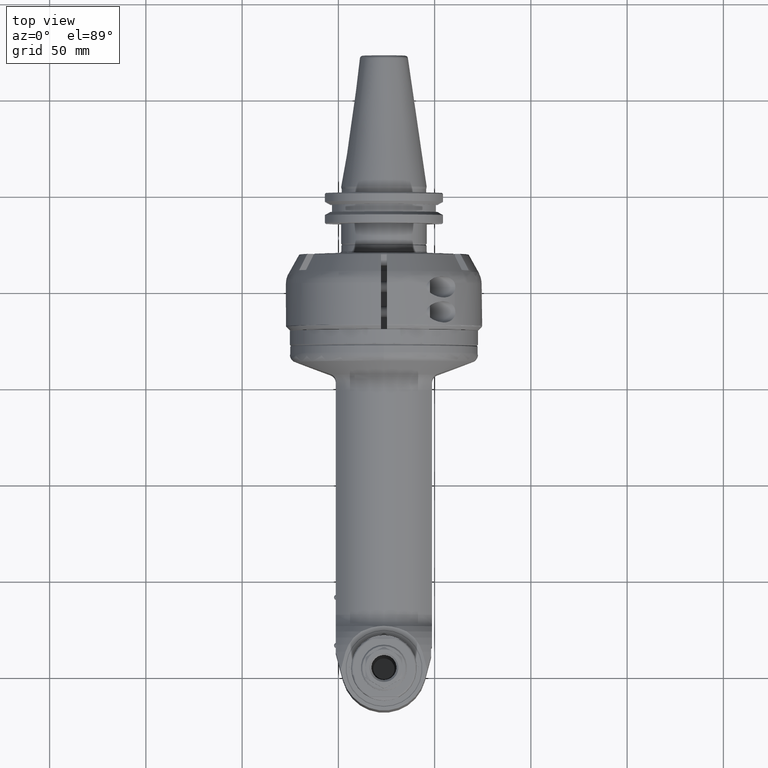
[diagram: clean part render]
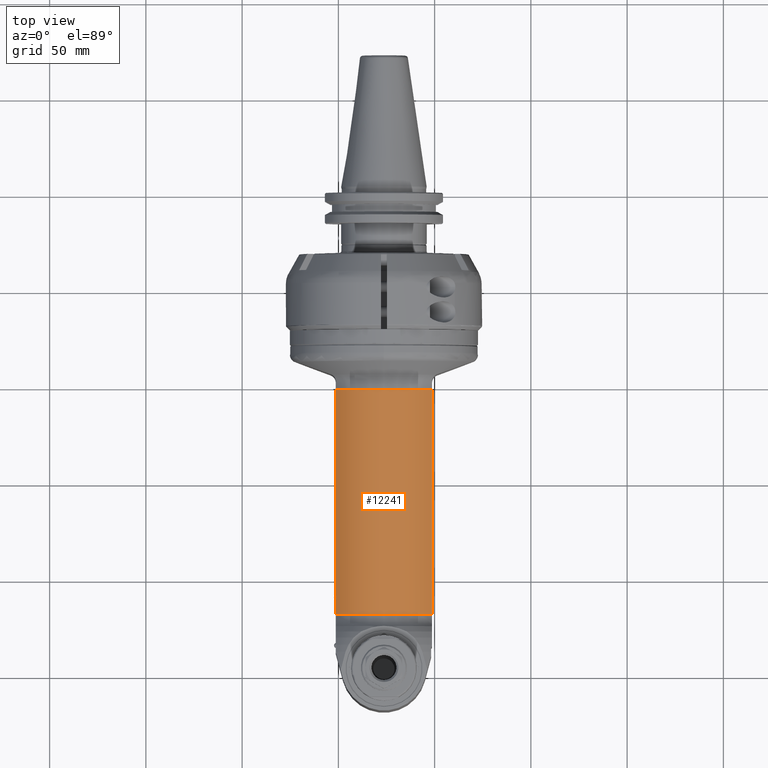
[diagram: same view with one face highlighted and labeled with its STEP entity id]
A machine part, top view. The second image highlights one B-rep face of the part: STEP entity #12241.
In plain terms, the highlighted cylindrical surface (partial cylindrical patch) has radius 30 mm, axis along (-0, 1, 0).
Its self-contained STEP definition (entity closure, byte-faithful):
#517=CYLINDRICAL_SURFACE('',#13083,30.);
#902=CIRCLE('',#13082,30.);
#903=CIRCLE('',#13084,30.);
#1557=FACE_OUTER_BOUND('',#2273,.T.);
#2273=EDGE_LOOP('',(#8460,#8461,#8462,#8463));
#3079=LINE('',#18462,#4038);
#3087=LINE('',#18646,#4046);
#4038=VECTOR('',#14652,116.7720146362);
#4046=VECTOR('',#14692,116.7720146362);
#5047=VERTEX_POINT('',#18452);
#5048=VERTEX_POINT('',#18461);
#5077=VERTEX_POINT('',#18623);
#5079=VERTEX_POINT('',#18645);
#6408=EDGE_CURVE('',#5048,#5047,#3079,.T.);
#6442=EDGE_CURVE('',#5077,#5047,#902,.T.);
#6445=EDGE_CURVE('',#5077,#5079,#3087,.T.);
#6446=EDGE_CURVE('',#5048,#5079,#903,.T.);
#8460=ORIENTED_EDGE('',*,*,#6442,.F.);
#8461=ORIENTED_EDGE('',*,*,#6445,.T.);
#8462=ORIENTED_EDGE('',*,*,#6446,.F.);
#8463=ORIENTED_EDGE('',*,*,#6408,.T.);
#12241=ADVANCED_FACE('',(#1557),#517,.T.);
#13082=AXIS2_PLACEMENT_3D('',#18624,#14688,#14689);
#13083=AXIS2_PLACEMENT_3D('',#18644,#14690,#14691);
#13084=AXIS2_PLACEMENT_3D('',#18647,#14693,#14694);
#14652=DIRECTION('',(-1.,0.,0.));
#14688=DIRECTION('center_axis',(-1.,0.,0.));
#14689=DIRECTION('ref_axis',(0.,-0.552770798392605,-0.833333333333308));
#14690=DIRECTION('center_axis',(-1.,0.,0.));
#14691=DIRECTION('ref_axis',(0.,-1.,-1.22464679914735E-16));
#14692=DIRECTION('',(1.,0.,0.));
#14693=DIRECTION('center_axis',(1.,0.,0.));
#14694=DIRECTION('ref_axis',(0.,-1.,0.));
#18452=CARTESIAN_POINT('',(35.16580758197,-16.58312395178,25.));
#18461=CARTESIAN_POINT('',(151.9378222182,-16.58312395178,25.));
#18462=CARTESIAN_POINT('',(151.9378222182,-16.58312395178,25.));
#18623=CARTESIAN_POINT('',(35.16580758197,-16.58312395178,-25.));
#18624=CARTESIAN_POINT('Origin',(35.16580758197,0.,0.));
#18644=CARTESIAN_POINT('Origin',(144.9744646309,0.,0.));
#18645=CARTESIAN_POINT('',(151.9378222182,-16.58312395178,-25.));
#18646=CARTESIAN_POINT('',(35.16580758197,-16.58312395178,-25.));
#18647=CARTESIAN_POINT('Origin',(151.9378222182,0.,0.));